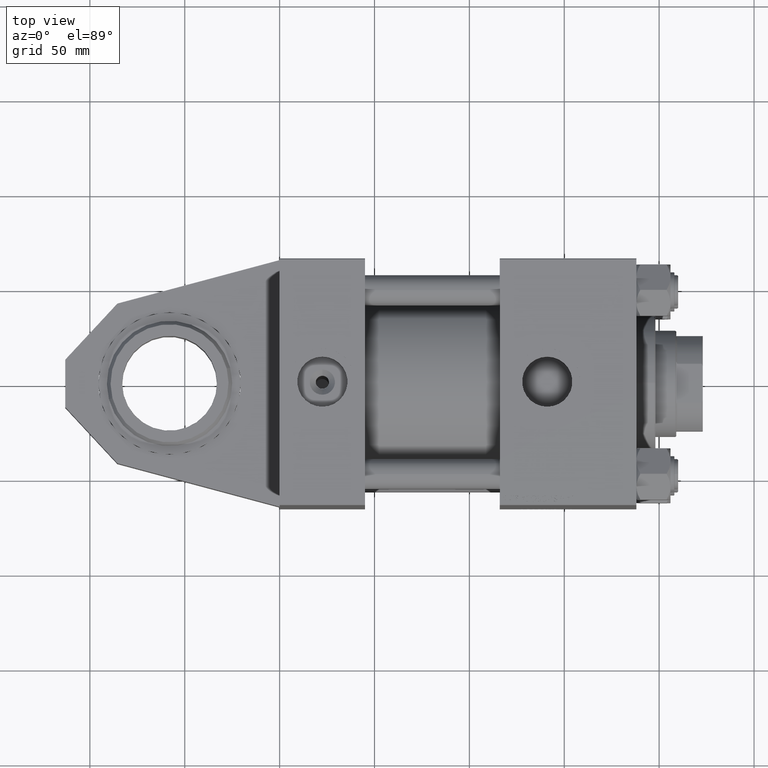
[diagram: clean part render]
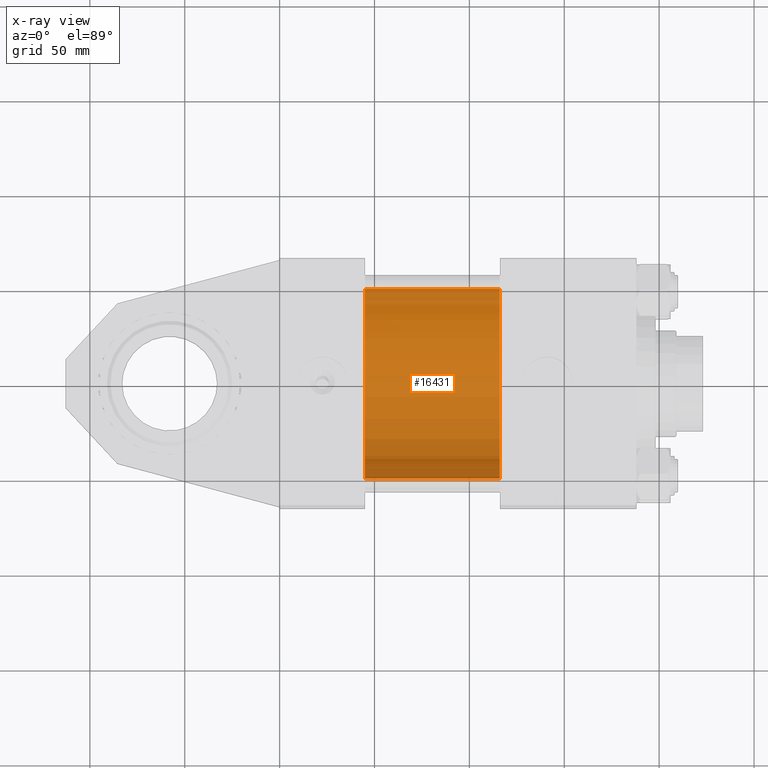
[diagram: x-ray — body ghosted, one internal face saturated and labeled with its STEP entity id]
A machine part, top view, then the same camera in x-ray: the body is ghosted and one INTERNAL B-rep face — a face not visible from any outside direction — is saturated and labeled: STEP entity #16431.
In plain terms, the highlighted cylindrical surface (partial cylindrical patch) has radius 50 mm, axis along (-1, 0, -0).
Its self-contained STEP definition (entity closure, byte-faithful):
#1768 = DIRECTION ( 'NONE',  ( 1.000000000000000000, 0.000000000000000000, 0.000000000000000000 ) ) ;
#3736 = DIRECTION ( 'NONE',  ( 1.000000000000000000, 0.000000000000000000, 0.000000000000000000 ) ) ;
#5055 = ORIENTED_EDGE ( 'NONE', *, *, #43288, .T. ) ;
#5103 = CARTESIAN_POINT ( 'NONE',  ( 115.9999999999999858, 3.521148781771555838E-15, -50.00000000000000000 ) ) ;
#5746 = EDGE_CURVE ( 'NONE', #35108, #7084, #12784, .T. ) ;
#6290 = CARTESIAN_POINT ( 'NONE',  ( 115.9999999999999858, -2.602085213965210642E-15, 0.000000000000000000 ) ) ;
#7084 = VERTEX_POINT ( 'NONE', #27871 ) ;
#7767 = LINE ( 'NONE', #40778, #30441 ) ;
#8274 = CARTESIAN_POINT ( 'NONE',  ( 115.9999999999999858, -2.602085213965210642E-15, 50.00000000000000000 ) ) ;
#9124 = ORIENTED_EDGE ( 'NONE', *, *, #5746, .F. ) ;
#9285 = EDGE_LOOP ( 'NONE', ( #5055, #12100, #19070, #9124 ) ) ;
#9606 = AXIS2_PLACEMENT_3D ( 'NONE', #48250, #3736, #24245 ) ;
#10818 = VECTOR ( 'NONE', #41025, 1000.000000000000000 ) ;
#11176 = EDGE_CURVE ( 'NONE', #44407, #31575, #7767, .T. ) ;
#12100 = ORIENTED_EDGE ( 'NONE', *, *, #11176, .T. ) ;
#12784 = LINE ( 'NONE', #8274, #10818 ) ;
#15828 = CYLINDRICAL_SURFACE ( 'NONE', #47545, 50.00000000000000000 ) ;
#16342 = CARTESIAN_POINT ( 'NONE',  ( 115.9999999999999858, -2.602085213965210642E-15, 0.000000000000000000 ) ) ;
#16431 = ADVANCED_FACE ( 'NONE', ( #31035 ), #15828, .F. ) ;
#17420 = CARTESIAN_POINT ( 'NONE',  ( 115.9999999999999858, -2.602085213965210642E-15, 50.00000000000000000 ) ) ;
#19070 = ORIENTED_EDGE ( 'NONE', *, *, #30396, .F. ) ;
#20085 = DIRECTION ( 'NONE',  ( 0.000000000000000000, 0.000000000000000000, 1.000000000000000000 ) ) ;
#22548 = DIRECTION ( 'NONE',  ( 0.000000000000000000, 0.000000000000000000, -1.000000000000000000 ) ) ;
#24245 = DIRECTION ( 'NONE',  ( 0.000000000000000000, 0.000000000000000000, -1.000000000000000000 ) ) ;
#25773 = CIRCLE ( 'NONE', #9606, 50.00000000000000000 ) ;
#27871 = CARTESIAN_POINT ( 'NONE',  ( 45.00000000000000000, -2.602085213965210642E-15, 50.00000000000000000 ) ) ;
#30396 = EDGE_CURVE ( 'NONE', #7084, #31575, #25773, .T. ) ;
#30441 = VECTOR ( 'NONE', #48786, 1000.000000000000000 ) ;
#31035 = FACE_OUTER_BOUND ( 'NONE', #9285, .T. ) ;
#31575 = VERTEX_POINT ( 'NONE', #49363 ) ;
#35023 = CIRCLE ( 'NONE', #39246, 50.00000000000000000 ) ;
#35108 = VERTEX_POINT ( 'NONE', #17420 ) ;
#35818 = DIRECTION ( 'NONE',  ( -1.000000000000000000, -0.000000000000000000, -0.000000000000000000 ) ) ;
#39246 = AXIS2_PLACEMENT_3D ( 'NONE', #6290, #1768, #22548 ) ;
#40778 = CARTESIAN_POINT ( 'NONE',  ( 115.9999999999999858, 3.521148781771555838E-15, -50.00000000000000000 ) ) ;
#41025 = DIRECTION ( 'NONE',  ( -1.000000000000000000, -0.000000000000000000, -0.000000000000000000 ) ) ;
#43288 = EDGE_CURVE ( 'NONE', #35108, #44407, #35023, .T. ) ;
#44407 = VERTEX_POINT ( 'NONE', #5103 ) ;
#47545 = AXIS2_PLACEMENT_3D ( 'NONE', #16342, #35818, #20085 ) ;
#48250 = CARTESIAN_POINT ( 'NONE',  ( 45.00000000000000000, -2.602085213965210642E-15, 0.000000000000000000 ) ) ;
#48786 = DIRECTION ( 'NONE',  ( -1.000000000000000000, -0.000000000000000000, -0.000000000000000000 ) ) ;
#49363 = CARTESIAN_POINT ( 'NONE',  ( 45.00000000000000000, 3.521148781771555838E-15, -50.00000000000000000 ) ) ;